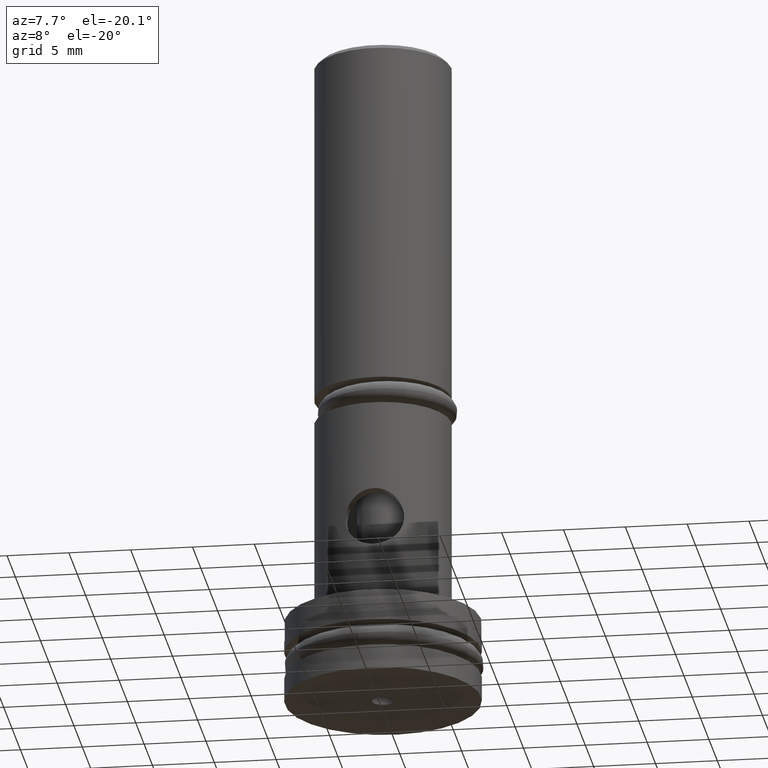
[diagram: clean part render]
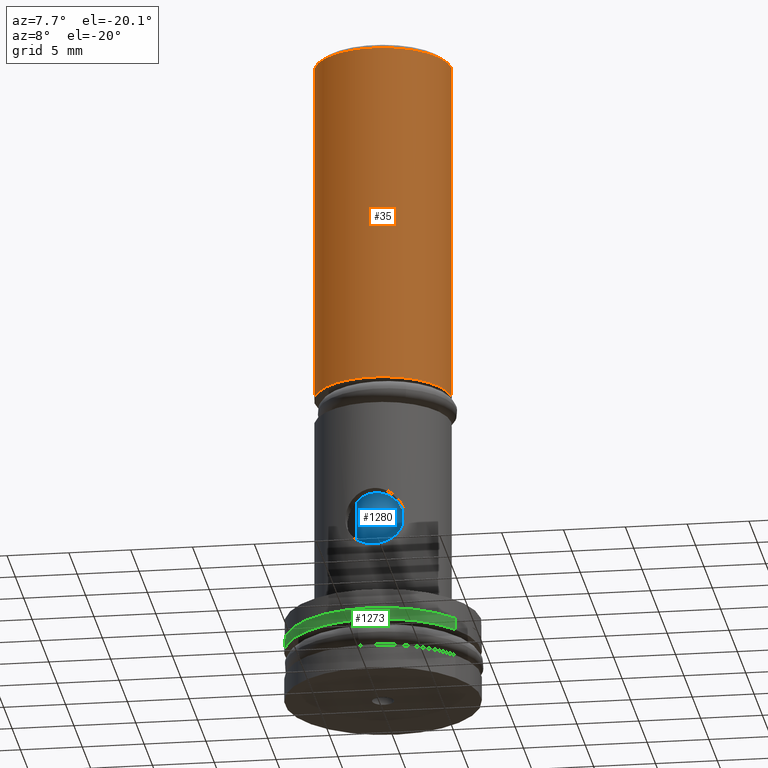
[diagram: same view with three faces highlighted in distinct colors, each labeled with its STEP entity id]
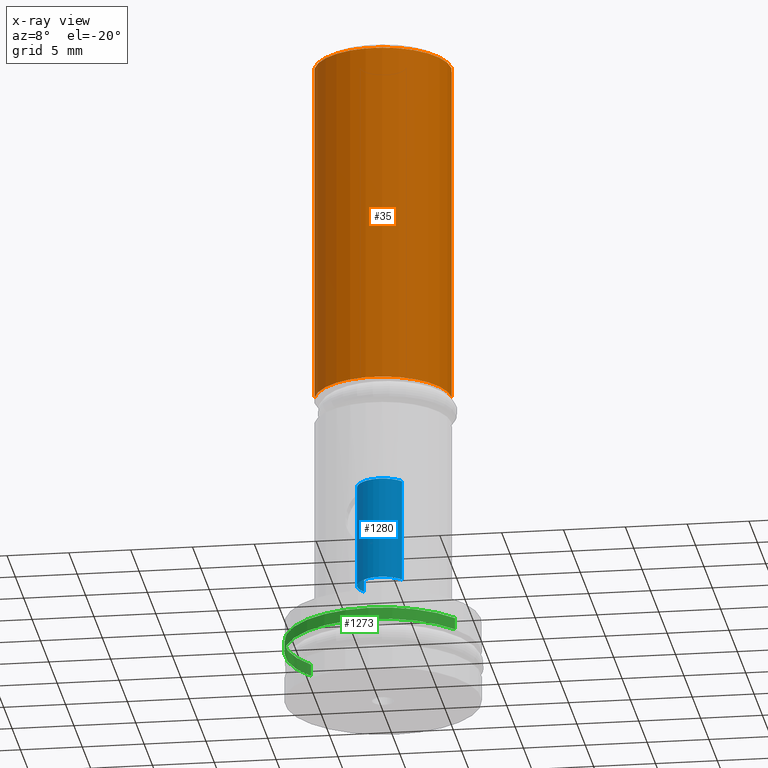
[diagram: x-ray of the same camera — body ghosted, the three highlighted faces saturated]
A machine part, auxiliary view with three faces highlighted in distinct colors.
The next image is the same camera in x-ray (body ghosted, the three faces saturated) — at least one of them is partly hidden behind the body in this view.
Their STEP definitions:

[orange] entity #35 — the highlighted cylindrical surface (partial cylindrical patch) has radius 5.5372 mm, axis along (-0, -0, -1).
#35 = ADVANCED_FACE ( 'NONE', ( #114 ), #115, .T. ) ;
#100 = ORIENTED_EDGE ( 'NONE', *, *, #1733, .F. ) ;
#101 = ORIENTED_EDGE ( 'NONE', *, *, #1783, .T. ) ;
#102 = ORIENTED_EDGE ( 'NONE', *, *, #1732, .T. ) ;
#103 = ORIENTED_EDGE ( 'NONE', *, *, #1784, .F. ) ;
#107 = CARTESIAN_POINT ( 'NONE',  ( 0.0000000000000000000, 0.0000000000000000000, -0.1109764883442422900 ) ) ;
#114 = FACE_OUTER_BOUND ( 'NONE', #1610, .T. ) ;
#115 = CYLINDRICAL_SURFACE ( 'NONE', #1812, 0.2179999999999998100 ) ;
#665 = CARTESIAN_POINT ( 'NONE',  ( -0.2179999999999998100, 0.0000000000000000000, -0.1109764883442422900 ) ) ;
#666 = DIRECTION ( 'NONE',  ( -0.0000000000000000000, -0.0000000000000000000, -1.000000000000000000 ) ) ;
#667 = CARTESIAN_POINT ( 'NONE',  ( 0.2179999999999998100, 2.669730022141227800E-017, -0.1109764883442422900 ) ) ;
#668 = DIRECTION ( 'NONE',  ( -0.0000000000000000000, -0.0000000000000000000, -1.000000000000000000 ) ) ;
#736 = VERTEX_POINT ( 'NONE', #2137 ) ;
#737 = VERTEX_POINT ( 'NONE', #2138 ) ;
#771 = VERTEX_POINT ( 'NONE', #2167 ) ;
#772 = DIRECTION ( 'NONE',  ( -0.0000000000000000000, -0.0000000000000000000, -1.000000000000000000 ) ) ;
#773 = DIRECTION ( 'NONE',  ( -1.000000000000000000, 0.0000000000000000000, 0.0000000000000000000 ) ) ;
#819 = VERTEX_POINT ( 'NONE', #2194 ) ;
#1023 = CARTESIAN_POINT ( 'NONE',  ( 0.0000000000000000000, 0.0000000000000000000, 1.915000000000000500 ) ) ;
#1024 = DIRECTION ( 'NONE',  ( -0.0000000000000000000, -0.0000000000000000000, -1.000000000000000000 ) ) ;
#1025 = DIRECTION ( 'NONE',  ( 1.000000000000000000, 0.0000000000000000000, 0.0000000000000000000 ) ) ;
#1026 = CARTESIAN_POINT ( 'NONE',  ( 0.0000000000000000000, 0.0000000000000000000, 0.8100000000000000500 ) ) ;
#1027 = DIRECTION ( 'NONE',  ( -0.0000000000000000000, -0.0000000000000000000, -1.000000000000000000 ) ) ;
#1028 = DIRECTION ( 'NONE',  ( -1.000000000000000000, 0.0000000000000000000, 0.0000000000000000000 ) ) ;
#1484 = LINE ( 'NONE', #665, #1486 ) ;
#1486 = VECTOR ( 'NONE', #666, 39.37007874015748100 ) ;
#1487 = LINE ( 'NONE', #667, #1488 ) ;
#1488 = VECTOR ( 'NONE', #668, 39.37007874015748100 ) ;
#1548 = CIRCLE ( 'NONE', #1971, 0.2179999999999998100 ) ;
#1550 = CIRCLE ( 'NONE', #1972, 0.2179999999999998600 ) ;
#1610 = EDGE_LOOP ( 'NONE', ( #100, #101, #102, #103 ) ) ;
#1732 = EDGE_CURVE ( 'NONE', #819, #771, #1484, .T. ) ;
#1733 = EDGE_CURVE ( 'NONE', #736, #737, #1487, .T. ) ;
#1783 = EDGE_CURVE ( 'NONE', #736, #819, #1548, .T. ) ;
#1784 = EDGE_CURVE ( 'NONE', #737, #771, #1550, .T. ) ;
#1812 = AXIS2_PLACEMENT_3D ( 'NONE', #107, #772, #773 ) ;
#1971 = AXIS2_PLACEMENT_3D ( 'NONE', #1023, #1024, #1025 ) ;
#1972 = AXIS2_PLACEMENT_3D ( 'NONE', #1026, #1027, #1028 ) ;
#2137 = CARTESIAN_POINT ( 'NONE',  ( 0.2179999999999998100, 2.669730022141227800E-017, 1.915000000000000500 ) ) ;
#2138 = CARTESIAN_POINT ( 'NONE',  ( 0.2179999999999998300, 2.669730022141228400E-017, 0.8100000000000000500 ) ) ;
#2167 = CARTESIAN_POINT ( 'NONE',  ( -0.2179999999999998600, 0.0000000000000000000, 0.8100000000000000500 ) ) ;
#2194 = CARTESIAN_POINT ( 'NONE',  ( -0.2179999999999998100, 0.0000000000000000000, 1.915000000000000500 ) ) ;

[blue] entity #1280 — the highlighted cylindrical surface (edge-blend (fillet) strip) has radius 2.0955 mm, axis along (-0, 0, -1).
#232 = ORIENTED_EDGE ( 'NONE', *, *, #851, .F. ) ;
#233 = ORIENTED_EDGE ( 'NONE', *, *, #1704, .F. ) ;
#234 = ORIENTED_EDGE ( 'NONE', *, *, #852, .T. ) ;
#235 = ORIENTED_EDGE ( 'NONE', *, *, #1761, .F. ) ;
#530 = CARTESIAN_POINT ( 'NONE',  ( 0.0000000000000000000, 0.0000000000000000000, 0.5169999999999999000 ) ) ;
#531 = DIRECTION ( 'NONE',  ( 0.0000000000000000000, 0.0000000000000000000, 1.000000000000000000 ) ) ;
#532 = DIRECTION ( 'NONE',  ( 1.000000000000000000, 0.0000000000000000000, 0.0000000000000000000 ) ) ;
#722 = VERTEX_POINT ( 'NONE', #2124 ) ;
#726 = VERTEX_POINT ( 'NONE', #2127 ) ;
#768 = VERTEX_POINT ( 'NONE', #2164 ) ;
#816 = VERTEX_POINT ( 'NONE', #2191 ) ;
#851 = EDGE_CURVE ( 'NONE', #726, #816, #1338, .T. ) ;
#852 = EDGE_CURVE ( 'NONE', #722, #768, #1341, .T. ) ;
#961 = CARTESIAN_POINT ( 'NONE',  ( 0.0000000000000000000, 0.0000000000000000000, 0.1870000000000000000 ) ) ;
#962 = DIRECTION ( 'NONE',  ( -0.0000000000000000000, -0.0000000000000000000, -1.000000000000000000 ) ) ;
#963 = DIRECTION ( 'NONE',  ( -1.000000000000000000, 0.0000000000000000000, 0.0000000000000000000 ) ) ;
#1244 = EDGE_LOOP ( 'NONE', ( #232, #233, #234, #235 ) ) ;
#1280 = ADVANCED_FACE ( 'NONE', ( #1381 ), #1382, .T. ) ;
#1338 = LINE ( 'NONE', #2255, #1340 ) ;
#1340 = VECTOR ( 'NONE', #2256, 39.37007874015748100 ) ;
#1341 = LINE ( 'NONE', #2257, #1342 ) ;
#1342 = VECTOR ( 'NONE', #2258, 39.37007874015748100 ) ;
#1381 = FACE_OUTER_BOUND ( 'NONE', #1244, .T. ) ;
#1382 = CYLINDRICAL_SURFACE ( 'NONE', #1882, 0.08249999999999992100 ) ;
#1454 = CIRCLE ( 'NONE', #1917, 0.08249999999999990700 ) ;
#1522 = CIRCLE ( 'NONE', #1953, 0.08249999999999993400 ) ;
#1704 = EDGE_CURVE ( 'NONE', #722, #726, #1454, .T. ) ;
#1761 = EDGE_CURVE ( 'NONE', #816, #768, #1522, .T. ) ;
#1882 = AXIS2_PLACEMENT_3D ( 'NONE', #2334, #2335, #2336 ) ;
#1917 = AXIS2_PLACEMENT_3D ( 'NONE', #530, #531, #532 ) ;
#1953 = AXIS2_PLACEMENT_3D ( 'NONE', #961, #962, #963 ) ;
#2124 = CARTESIAN_POINT ( 'NONE',  ( -0.08249999999999990700, 0.0000000000000000000, 0.5169999999999999000 ) ) ;
#2127 = CARTESIAN_POINT ( 'NONE',  ( 0.08249999999999990700, 1.010333609296565400E-017, 0.5169999999999999000 ) ) ;
#2164 = CARTESIAN_POINT ( 'NONE',  ( -0.08249999999999993400, 0.0000000000000000000, 0.1870000000000000000 ) ) ;
#2191 = CARTESIAN_POINT ( 'NONE',  ( 0.08249999999999993400, 1.010333609296565700E-017, 0.1870000000000000000 ) ) ;
#2255 = CARTESIAN_POINT ( 'NONE',  ( 0.08249999999999992100, 1.010333609296565400E-017, -0.2928196444417974200 ) ) ;
#2256 = DIRECTION ( 'NONE',  ( -0.0000000000000000000, -0.0000000000000000000, -1.000000000000000000 ) ) ;
#2257 = CARTESIAN_POINT ( 'NONE',  ( -0.08249999999999992100, 0.0000000000000000000, -0.2928196444417974200 ) ) ;
#2258 = DIRECTION ( 'NONE',  ( -0.0000000000000000000, -0.0000000000000000000, -1.000000000000000000 ) ) ;
#2334 = CARTESIAN_POINT ( 'NONE',  ( 0.0000000000000000000, 0.0000000000000000000, -0.2928196444417974200 ) ) ;
#2335 = DIRECTION ( 'NONE',  ( -0.0000000000000000000, -0.0000000000000000000, -1.000000000000000000 ) ) ;
#2336 = DIRECTION ( 'NONE',  ( -1.000000000000000000, 0.0000000000000000000, 0.0000000000000000000 ) ) ;

[green] entity #1273 — the highlighted cylindrical surface (partial cylindrical patch) has radius 7.9248 mm, axis along (-0, 0, -1).
#204 = ORIENTED_EDGE ( 'NONE', *, *, #1773, .F. ) ;
#205 = ORIENTED_EDGE ( 'NONE', *, *, #1694, .T. ) ;
#206 = ORIENTED_EDGE ( 'NONE', *, *, #1752, .T. ) ;
#207 = ORIENTED_EDGE ( 'NONE', *, *, #1706, .F. ) ;
#476 = CARTESIAN_POINT ( 'NONE',  ( 0.0000000000000000000, 0.0000000000000000000, 0.0000000000000000000 ) ) ;
#477 = DIRECTION ( 'NONE',  ( -0.0000000000000000000, -0.0000000000000000000, -1.000000000000000000 ) ) ;
#478 = DIRECTION ( 'NONE',  ( -1.000000000000000000, 0.0000000000000000000, 0.0000000000000000000 ) ) ;
#536 = CARTESIAN_POINT ( 'NONE',  ( 0.0000000000000000000, 0.0000000000000000000, -0.03800000000000001300 ) ) ;
#537 = DIRECTION ( 'NONE',  ( -0.0000000000000000000, -0.0000000000000000000, -1.000000000000000000 ) ) ;
#538 = DIRECTION ( 'NONE',  ( -1.000000000000000000, 0.0000000000000000000, 0.0000000000000000000 ) ) ;
#735 = VERTEX_POINT ( 'NONE', #2136 ) ;
#750 = VERTEX_POINT ( 'NONE', #2146 ) ;
#817 = VERTEX_POINT ( 'NONE', #2192 ) ;
#826 = VERTEX_POINT ( 'NONE', #2199 ) ;
#936 = CARTESIAN_POINT ( 'NONE',  ( -0.3120000000000000000, 0.0000000000000000000, -0.2928196444417974200 ) ) ;
#937 = DIRECTION ( 'NONE',  ( -0.0000000000000000000, -0.0000000000000000000, -1.000000000000000000 ) ) ;
#995 = CARTESIAN_POINT ( 'NONE',  ( 0.3120000000000000000, 3.820898013339742200E-017, -0.2928196444417974200 ) ) ;
#996 = DIRECTION ( 'NONE',  ( -0.0000000000000000000, -0.0000000000000000000, -1.000000000000000000 ) ) ;
#1273 = ADVANCED_FACE ( 'NONE', ( #1367 ), #1368, .T. ) ;
#1367 = FACE_OUTER_BOUND ( 'NONE', #1602, .T. ) ;
#1368 = CYLINDRICAL_SURFACE ( 'NONE', #1875, 0.3120000000000000000 ) ;
#1443 = CIRCLE ( 'NONE', #1911, 0.3120000000000000000 ) ;
#1456 = CIRCLE ( 'NONE', #1919, 0.3120000000000000000 ) ;
#1511 = LINE ( 'NONE', #936, #1512 ) ;
#1512 = VECTOR ( 'NONE', #937, 39.37007874015748100 ) ;
#1535 = LINE ( 'NONE', #995, #1537 ) ;
#1537 = VECTOR ( 'NONE', #996, 39.37007874015748100 ) ;
#1602 = EDGE_LOOP ( 'NONE', ( #204, #205, #206, #207 ) ) ;
#1694 = EDGE_CURVE ( 'NONE', #735, #750, #1443, .T. ) ;
#1706 = EDGE_CURVE ( 'NONE', #826, #817, #1456, .T. ) ;
#1752 = EDGE_CURVE ( 'NONE', #750, #817, #1511, .T. ) ;
#1773 = EDGE_CURVE ( 'NONE', #735, #826, #1535, .T. ) ;
#1875 = AXIS2_PLACEMENT_3D ( 'NONE', #2311, #2312, #2313 ) ;
#1911 = AXIS2_PLACEMENT_3D ( 'NONE', #476, #477, #478 ) ;
#1919 = AXIS2_PLACEMENT_3D ( 'NONE', #536, #537, #538 ) ;
#2136 = CARTESIAN_POINT ( 'NONE',  ( 0.3120000000000000000, 3.820898013339742200E-017, 0.0000000000000000000 ) ) ;
#2146 = CARTESIAN_POINT ( 'NONE',  ( -0.3120000000000000000, 0.0000000000000000000, 0.0000000000000000000 ) ) ;
#2192 = CARTESIAN_POINT ( 'NONE',  ( -0.3120000000000000000, 0.0000000000000000000, -0.03800000000000001300 ) ) ;
#2199 = CARTESIAN_POINT ( 'NONE',  ( 0.3120000000000000000, 3.820898013339742200E-017, -0.03800000000000001300 ) ) ;
#2311 = CARTESIAN_POINT ( 'NONE',  ( 0.0000000000000000000, 0.0000000000000000000, -0.2928196444417974200 ) ) ;
#2312 = DIRECTION ( 'NONE',  ( -0.0000000000000000000, -0.0000000000000000000, -1.000000000000000000 ) ) ;
#2313 = DIRECTION ( 'NONE',  ( -1.000000000000000000, 0.0000000000000000000, 0.0000000000000000000 ) ) ;